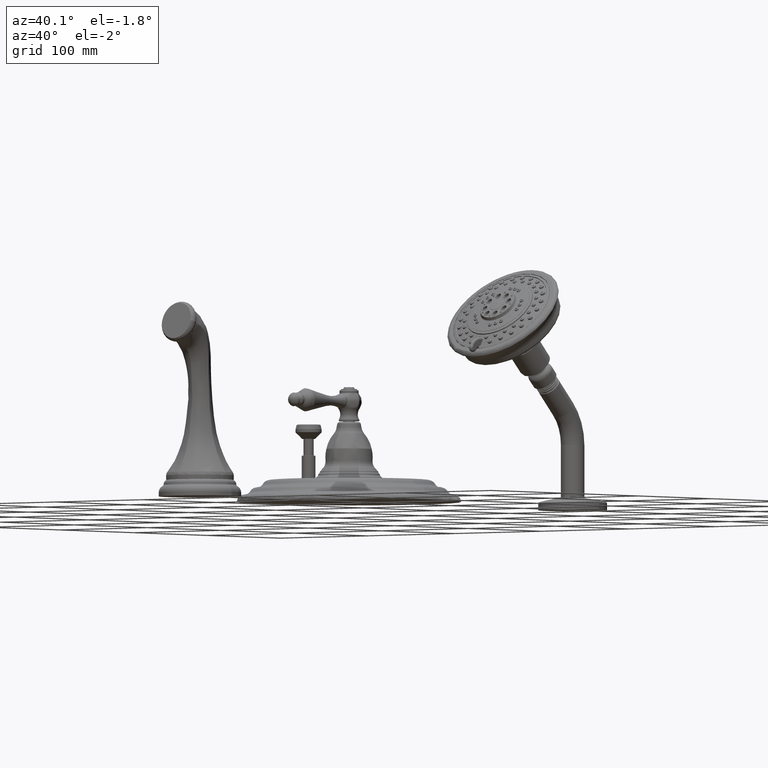
[diagram: clean part render]
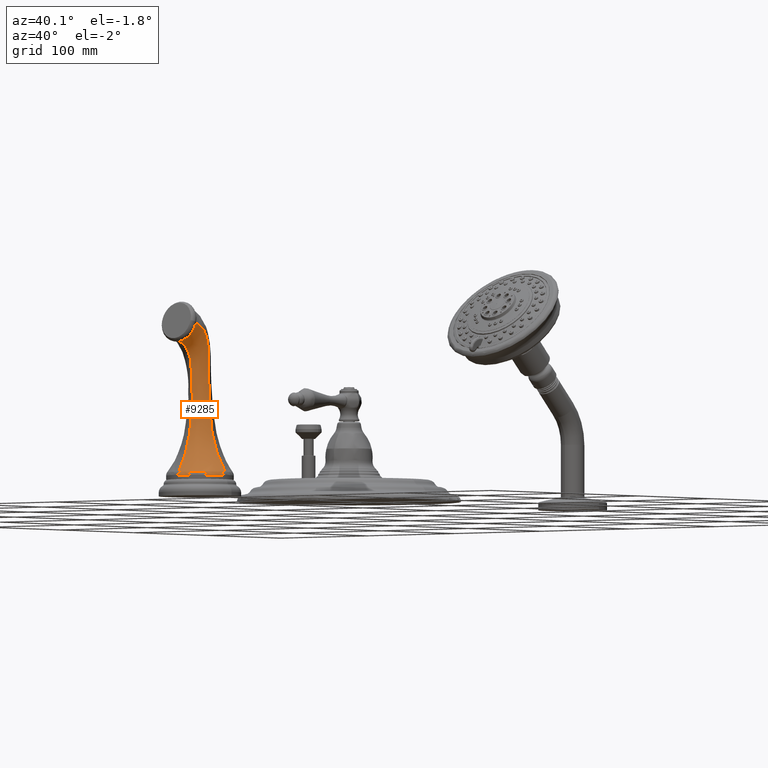
[diagram: same view with one face highlighted and labeled with its STEP entity id]
A machine part, auxiliary view. The second image highlights one B-rep face of the part: STEP entity #9285.
In plain terms, the highlighted face is a freeform B-spline surface patch.
Its self-contained STEP definition (entity closure, byte-faithful):
#8147=CARTESIAN_POINT('',(1.136722010433E0,-8.000000000223E0,
8.317705179022E-1));
#8214=CARTESIAN_POINT('',(6.362466257573E-1,-8.980058312882E0,
5.967048727690E0));
#8215=CARTESIAN_POINT('',(6.362466257573E-1,-8.863873466124E0,
5.935917091828E0));
#8216=CARTESIAN_POINT('',(6.247648631965E-1,-8.637531197968E0,
5.843980840580E0));
#8217=CARTESIAN_POINT('',(5.737178937073E-1,-8.362761937259E0,
5.606470583703E0));
#8218=CARTESIAN_POINT('',(5.185423975618E-1,-8.208621078912E0,
5.350164658123E0));
#8219=CARTESIAN_POINT('',(4.769737251890E-1,-8.123421321236E0,
5.128577825983E0));
#8220=CARTESIAN_POINT('',(4.486414065148E-1,-8.075588341736E0,
4.956565815991E0));
#8221=CARTESIAN_POINT('',(4.245716606277E-1,-8.041364545680E0,
4.780816354603E0));
#8222=CARTESIAN_POINT('',(4.058636084980E-1,-8.018427651200E0,
4.602664967914E0));
#8223=CARTESIAN_POINT('',(3.955654272218E-1,-8.007216955788E0,
4.452931082043E0));
#8224=CARTESIAN_POINT('',(3.909664260784E-1,-8.002160750626E0,
4.332764222992E0));
#8225=CARTESIAN_POINT('',(3.896737474152E-1,-8.000474272428E0,
4.257568772615E0));
#8226=CARTESIAN_POINT('',(3.897671690759E-1,-8.000035266578E0,
4.197438035532E0));
#8227=CARTESIAN_POINT('',(3.903580886575E-1,-7.999920625860E0,
4.137258456725E0));
#8228=CARTESIAN_POINT('',(3.922107460669E-1,-8.000071198206E0,
4.031832903038E0));
#8229=CARTESIAN_POINT('',(3.957119017021E-1,-7.999961236254E0,
3.881349281973E0));
#8230=CARTESIAN_POINT('',(4.020619104346E-1,-8.000015167548E0,
3.700769064731E0));
#8231=CARTESIAN_POINT('',(4.130293183916E-1,-7.999997234513E0,
3.460127596510E0));
#8232=CARTESIAN_POINT('',(4.315623149199E-1,-8.000001046237E0,
3.159560304170E0));
#8233=CARTESIAN_POINT('',(4.567854834176E-1,-7.999999859294E0,
2.859483773623E0));
#8234=CARTESIAN_POINT('',(4.803166265308E-1,-8.000000024862E0,
2.619742706292E0));
#8235=CARTESIAN_POINT('',(5.079707584581E-1,-7.999999985571E0,
2.380397752926E0));
#8236=CARTESIAN_POINT('',(5.658795337059E-1,-8.000000004885E0,
2.084491841974E0));
#8237=CARTESIAN_POINT('',(6.683324609568E-1,-7.999999998730E0,
1.737578291287E0));
#8238=CARTESIAN_POINT('',(8.412042739137E-1,-8.000000000628E0,
1.309476655935E0));
#8239=CARTESIAN_POINT('',(1.011015662867E0,-8.000000000293E0,1.012614746990E0));
#8240=CARTESIAN_POINT('',(1.136722010433E0,-8.000000000223E0,
8.317705179022E-1));
#8242=CARTESIAN_POINT('',(6.362466257573E-1,-8.980058312882E0,
5.967048727690E0));
#8250=CARTESIAN_POINT('',(0.E0,-9.144731057011E0,5.352481679982E0));
#8251=CARTESIAN_POINT('',(0.E0,-9.043586208966E0,5.324690235203E0));
#8252=CARTESIAN_POINT('',(0.E0,-8.850976377005E0,5.233619744586E0));
#8253=CARTESIAN_POINT('',(0.E0,-8.626454093760E0,5.006784434230E0));
#8254=CARTESIAN_POINT('',(0.E0,-8.513121933873E0,4.765306862436E0));
#8255=CARTESIAN_POINT('',(0.E0,-8.479875609588E0,4.557698268196E0));
#8256=CARTESIAN_POINT('',(0.E0,-8.458036812985E0,4.401964809082E0));
#8257=CARTESIAN_POINT('',(0.E0,-8.440041602590E0,4.245619726993E0));
#8258=CARTESIAN_POINT('',(0.E0,-8.425694437943E0,4.088931331925E0));
#8259=CARTESIAN_POINT('',(0.E0,-8.416832940647E0,3.958103276368E0));
#8260=CARTESIAN_POINT('',(0.E0,-8.411594430583E0,3.853339098659E0));
#8261=CARTESIAN_POINT('',(0.E0,-8.409093221782E0,3.787827204302E0));
#8262=CARTESIAN_POINT('',(0.E0,-8.407555991673E0,3.735402771567E0));
#8263=CARTESIAN_POINT('',(0.E0,-8.406328056387E0,3.682970181935E0));
#8264=CARTESIAN_POINT('',(0.E0,-8.404991082420E0,3.591196546948E0));
#8265=CARTESIAN_POINT('',(0.E0,-8.405400606583E0,3.460071214571E0));
#8266=CARTESIAN_POINT('',(0.E0,-8.409603310680E0,3.302776046586E0));
#8267=CARTESIAN_POINT('',(0.E0,-8.420151785001E0,3.093239570915E0));
#8268=CARTESIAN_POINT('',(0.E0,-8.442620024615E0,2.831899094735E0));
#8269=CARTESIAN_POINT('',(0.E0,-8.477315122526E0,2.571892529282E0));
#8270=CARTESIAN_POINT('',(0.E0,-8.512567519412E0,2.365078722163E0));
#8271=CARTESIAN_POINT('',(-2.009550478889E-14,-8.552052635952E0,
2.159016574082E0));
#8272=CARTESIAN_POINT('',(1.656483907986E-13,-8.615808743517E0,
1.904434597877E0));
#8273=CARTESIAN_POINT('',(-6.030769330562E-13,-8.718334761021E0,
1.606612759585E0));
#8274=CARTESIAN_POINT('',(3.012569343639E-12,-8.879166313263E0,
1.241176335927E0));
#8275=CARTESIAN_POINT('',(-1.199103718870E-11,-9.028763593881E0,
9.870716406473E-1));
#8276=CARTESIAN_POINT('',(-1.199102664320E-11,-9.136719884910E0,
8.317720657176E-1));
#8278=CARTESIAN_POINT('',(0.E0,-9.144731057011E0,5.352481679982E0));
#8279=CARTESIAN_POINT('',(8.328448855626E-2,-9.144731057011E0,
5.352481679982E0));
#8280=CARTESIAN_POINT('',(2.498146402672E-1,-9.136156751827E0,
5.384481422566E0));
#8281=CARTESIAN_POINT('',(4.616082816832E-1,-9.099531327559E0,
5.521169366783E0));
#8282=CARTESIAN_POINT('',(6.031180544800E-1,-9.044715099529E0,
5.725746314871E0));
#8283=CARTESIAN_POINT('',(6.362466257573E-1,-9.001613924682E0,
5.886602089264E0));
#8284=CARTESIAN_POINT('',(6.362466257573E-1,-8.980058312882E0,
5.967048727690E0));
#8328=CARTESIAN_POINT('',(-1.199102664320E-11,-9.136719884910E0,
8.317720657176E-1));
#8329=CARTESIAN_POINT('',(2.166981182738E-2,-9.136723054803E0,
8.317715190718E-1));
#8330=CARTESIAN_POINT('',(6.511637789147E-2,-9.135483588322E0,
8.317499178254E-1));
#8331=CARTESIAN_POINT('',(1.304241200771E-1,-9.129846725793E0,
8.316945551821E-1));
#8332=CARTESIAN_POINT('',(1.955087515392E-1,-9.120404170525E0,
8.316786399721E-1));
#8333=CARTESIAN_POINT('',(2.600629812898E-1,-9.107165106057E0,
8.317136732568E-1));
#8334=CARTESIAN_POINT('',(3.237905813005E-1,-9.090176300848E0,
8.317664657274E-1));
#8335=CARTESIAN_POINT('',(3.863853702824E-1,-9.069507974759E0,
8.318137389320E-1));
#8336=CARTESIAN_POINT('',(4.476273417261E-1,-9.045256034526E0,
8.318577154508E-1));
#8337=CARTESIAN_POINT('',(5.073564354489E-1,-9.017499153993E0,
8.318974621463E-1));
#8338=CARTESIAN_POINT('',(5.653922622811E-1,-8.986300608499E0,
8.319184773989E-1));
#8339=CARTESIAN_POINT('',(6.215467155956E-1,-8.951765149007E0,
8.319384937809E-1));
#8340=CARTESIAN_POINT('',(6.756281870551E-1,-8.914008665411E0,
8.319866859117E-1));
#8341=CARTESIAN_POINT('',(7.274519596232E-1,-8.873153600900E0,
8.320859061952E-1));
#8342=CARTESIAN_POINT('',(7.768545966205E-1,-8.829338957629E0,
8.321928417780E-1));
#8343=CARTESIAN_POINT('',(8.236669107778E-1,-8.782693561252E0,
8.322558684790E-1));
#8344=CARTESIAN_POINT('',(8.677341166177E-1,-8.733361175893E0,
8.322529824290E-1));
#8345=CARTESIAN_POINT('',(9.089176786923E-1,-8.681508196568E0,
8.322384027777E-1));
#8346=CARTESIAN_POINT('',(9.470680039785E-1,-8.627298272204E0,
8.322616548601E-1));
#8347=CARTESIAN_POINT('',(9.820475492046E-1,-8.570910512346E0,
8.323141792684E-1));
#8348=CARTESIAN_POINT('',(1.013734694604E0,-8.512530965953E0,
8.323538563588E-1));
#8349=CARTESIAN_POINT('',(1.042009554519E0,-8.452339448523E0,
8.323502826512E-1));
#8350=CARTESIAN_POINT('',(1.066786455159E0,-8.390530586137E0,
8.323137184474E-1));
#8351=CARTESIAN_POINT('',(1.087979908419E0,-8.327289599281E0,
8.322495225272E-1));
#8352=CARTESIAN_POINT('',(1.105474609244E0,-8.262864314758E0,
8.321588534050E-1));
#8353=CARTESIAN_POINT('',(1.119188803289E0,-8.197585698389E0,
8.320559526729E-1));
#8354=CARTESIAN_POINT('',(1.129072901512E0,-8.131775252349E0,
8.319704435820E-1));
#8355=CARTESIAN_POINT('',(1.135114381457E0,-8.065759124458E0,
8.319032709311E-1));
#8356=CARTESIAN_POINT('',(1.136604065476E0,-8.021879268790E0,
8.318241659817E-1));
#8357=CARTESIAN_POINT('',(1.136722010433E0,-8.000000000223E0,
8.317705179022E-1));
#8768=VERTEX_POINT('',#8242);
#8770=VERTEX_POINT('',#8278);
#8776=VERTEX_POINT('',#8147);
#8780=VERTEX_POINT('',#8276);
#9086=CARTESIAN_POINT('',(1.136721952478E0,-8.000000000010E0,
8.317704776176E-1));
#9087=CARTESIAN_POINT('',(1.011015604911E0,-8.000000000080E0,1.012614706705E0));
#9088=CARTESIAN_POINT('',(8.412042882611E-1,-8.000000000681E0,
1.309476665908E0));
#9089=CARTESIAN_POINT('',(6.683324581052E-1,-7.999999998719E0,
1.737578289305E0));
#9090=CARTESIAN_POINT('',(5.658795344868E-1,-8.000000004888E0,
2.084491842517E0));
#9091=CARTESIAN_POINT('',(5.079707583614E-1,-7.999999985571E0,
2.380397752858E0));
#9092=CARTESIAN_POINT('',(4.803166265486E-1,-8.000000024862E0,
2.619742706304E0));
#9093=CARTESIAN_POINT('',(4.567854834073E-1,-7.999999859294E0,
2.859483773616E0));
#9094=CARTESIAN_POINT('',(4.315623149234E-1,-8.000001046237E0,
3.159560304172E0));
#9095=CARTESIAN_POINT('',(4.130293183912E-1,-7.999997234513E0,
3.460127596510E0));
#9096=CARTESIAN_POINT('',(4.020619104347E-1,-8.000015167548E0,
3.700769064731E0));
#9097=CARTESIAN_POINT('',(3.957119017021E-1,-7.999961236254E0,
3.881349281973E0));
#9098=CARTESIAN_POINT('',(3.922107460669E-1,-8.000071198206E0,
4.031832903038E0));
#9099=CARTESIAN_POINT('',(3.903580886575E-1,-7.999920625860E0,
4.137258456725E0));
#9100=CARTESIAN_POINT('',(3.897671690759E-1,-8.000035266578E0,
4.197438035532E0));
#9101=CARTESIAN_POINT('',(3.896737474152E-1,-8.000474272428E0,
4.257568772615E0));
#9102=CARTESIAN_POINT('',(3.909664260784E-1,-8.002160750626E0,
4.332764222992E0));
#9103=CARTESIAN_POINT('',(3.955654272218E-1,-8.007216955788E0,
4.452931082043E0));
#9104=CARTESIAN_POINT('',(4.058636084980E-1,-8.018427651200E0,
4.602664967914E0));
#9105=CARTESIAN_POINT('',(4.245716606277E-1,-8.041364545680E0,
4.780816354603E0));
#9106=CARTESIAN_POINT('',(4.486414065148E-1,-8.075588341736E0,
4.956565815991E0));
#9107=CARTESIAN_POINT('',(4.769737251890E-1,-8.123421321236E0,
5.128577825983E0));
#9108=CARTESIAN_POINT('',(5.185423975618E-1,-8.208621078912E0,
5.350164658123E0));
#9109=CARTESIAN_POINT('',(5.737178937073E-1,-8.362761937259E0,
5.606470583703E0));
#9110=CARTESIAN_POINT('',(6.247648631965E-1,-8.637531197968E0,
5.843980840580E0));
#9111=CARTESIAN_POINT('',(6.362466257573E-1,-8.863873466124E0,
5.935917091828E0));
#9112=CARTESIAN_POINT('',(6.362466257573E-1,-8.980058312882E0,
5.967048727690E0));
#9113=CARTESIAN_POINT('',(1.136721952478E0,-8.148993869940E0,
8.309815668572E-1));
#9114=CARTESIAN_POINT('',(1.011015604911E0,-8.133229731452E0,1.008990799214E0));
#9115=CARTESIAN_POINT('',(8.412042882611E-1,-8.111893924821E0,
1.300973298813E0));
#9116=CARTESIAN_POINT('',(6.683324581052E-1,-8.090122039555E0,
1.721857792945E0));
#9117=CARTESIAN_POINT('',(5.658795344868E-1,-8.077060638746E0,
2.062918846617E0));
#9118=CARTESIAN_POINT('',(5.079707583614E-1,-8.069894245483E0,
2.353898681576E0));
#9119=CARTESIAN_POINT('',(4.803166265486E-1,-8.065072136035E0,
2.589443094990E0));
#9120=CARTESIAN_POINT('',(4.567854834073E-1,-8.060728653583E0,
2.825401805538E0));
#9121=CARTESIAN_POINT('',(4.315623149234E-1,-8.056250667675E0,
3.120805041040E0));
#9122=CARTESIAN_POINT('',(4.130293183912E-1,-8.053028697691E0,
3.416740025297E0));
#9123=CARTESIAN_POINT('',(4.020619104347E-1,-8.051232899739E0,
3.653686814129E0));
#9124=CARTESIAN_POINT('',(3.957119017021E-1,-8.050199742311E0,
3.831497711455E0));
#9125=CARTESIAN_POINT('',(3.922107460669E-1,-8.049809650402E0,
3.979671921760E0));
#9126=CARTESIAN_POINT('',(3.903580886575E-1,-8.049477467663E0,
4.083478385272E0));
#9127=CARTESIAN_POINT('',(3.897671690759E-1,-8.049536369153E0,
4.142731835881E0));
#9128=CARTESIAN_POINT('',(3.896737474152E-1,-8.049944530492E0,
4.201935742977E0));
#9129=CARTESIAN_POINT('',(3.909664260784E-1,-8.051681936433E0,
4.275971277416E0));
#9130=CARTESIAN_POINT('',(3.955654272218E-1,-8.056832420341E0,
4.394277621026E0));
#9131=CARTESIAN_POINT('',(4.058636084980E-1,-8.067462982570E0,
4.541710219166E0));
#9132=CARTESIAN_POINT('',(4.245716606277E-1,-8.088769997686E0,
4.717250980582E0));
#9133=CARTESIAN_POINT('',(4.486414065148E-1,-8.120401499073E0,
4.890653937144E0));
#9134=CARTESIAN_POINT('',(4.769737251890E-1,-8.164737405802E0,
5.060680057446E0));
#9135=CARTESIAN_POINT('',(5.185423975618E-1,-8.244060832377E0,
5.280294106613E0));
#9136=CARTESIAN_POINT('',(5.737178937073E-1,-8.392717402727E0,
5.534540181382E0));
#9137=CARTESIAN_POINT('',(6.247648631965E-1,-8.662781263953E0,
5.768873071279E0));
#9138=CARTESIAN_POINT('',(6.362466257573E-1,-8.886699631550E0,
5.857503343528E0));
#9139=CARTESIAN_POINT('',(6.362466257573E-1,-9.001613924682E0,
5.886602089264E0));
#9140=CARTESIAN_POINT('',(1.077855784163E0,-8.447432315933E0,
8.293455709869E-1));
#9141=CARTESIAN_POINT('',(9.598216648690E-1,-8.401953123333E0,
1.001477339652E0));
#9142=CARTESIAN_POINT('',(8.003267312536E-1,-8.340029933781E0,
1.283368986050E0));
#9143=CARTESIAN_POINT('',(6.378298275476E-1,-8.275778447415E0,
1.689332351971E0));
#9144=CARTESIAN_POINT('',(5.414276239795E-1,-8.236472114407E0,
2.018269418767E0));
#9145=CARTESIAN_POINT('',(4.868303483111E-1,-8.213863357472E0,
2.299046027989E0));
#9146=CARTESIAN_POINT('',(4.606502128562E-1,-8.199038274290E0,
2.526539197691E0));
#9147=CARTESIAN_POINT('',(4.383608378091E-1,-8.185699757046E0,
2.754506217502E0));
#9148=CARTESIAN_POINT('',(4.144160253955E-1,-8.172099134652E0,
3.040111595670E0));
#9149=CARTESIAN_POINT('',(3.967440265080E-1,-8.162544312660E0,
3.326395578245E0));
#9150=CARTESIAN_POINT('',(3.862208690073E-1,-8.157369448987E0,
3.555665245388E0));
#9151=CARTESIAN_POINT('',(3.800886413007E-1,-8.154652628758E0,
3.727731101549E0));
#9152=CARTESIAN_POINT('',(3.766499812151E-1,-8.153548582810E0,
3.871104264042E0));
#9153=CARTESIAN_POINT('',(3.748130070162E-1,-8.153107266135E0,
3.971568473813E0));
#9154=CARTESIAN_POINT('',(3.741918553890E-1,-8.153194271210E0,
4.028866786424E0));
#9155=CARTESIAN_POINT('',(3.740367775574E-1,-8.153651788225E0,
4.086287779532E0));
#9156=CARTESIAN_POINT('',(3.751740002867E-1,-8.155436919763E0,
4.157994162291E0));
#9157=CARTESIAN_POINT('',(3.793816546883E-1,-8.160480460699E0,
4.272527086937E0));
#9158=CARTESIAN_POINT('',(3.889301670436E-1,-8.169857579819E0,
4.415173893527E0));
#9159=CARTESIAN_POINT('',(4.063542558093E-1,-8.187897731628E0,
4.585154168568E0));
#9160=CARTESIAN_POINT('',(4.287957410292E-1,-8.214290259679E0,
4.753466154515E0));
#9161=CARTESIAN_POINT('',(4.552053823197E-1,-8.251276860773E0,
4.919162399177E0));
#9162=CARTESIAN_POINT('',(4.939245410040E-1,-8.317544650228E0,
5.134705842340E0));
#9163=CARTESIAN_POINT('',(5.452345986536E-1,-8.455208867537E0,
5.384779927397E0));
#9164=CARTESIAN_POINT('',(5.926367948612E-1,-8.714919114707E0,
5.614238788708E0));
#9165=CARTESIAN_POINT('',(6.032345917504E-1,-8.932829321060E0,
5.699107190077E0));
#9166=CARTESIAN_POINT('',(6.031180544800E-1,-9.044715099529E0,
5.725746314871E0));
#9167=CARTESIAN_POINT('',(8.254114129021E-1,-8.827638747050E0,
8.271607113126E-1));
#9168=CARTESIAN_POINT('',(7.366598824193E-1,-8.746623361541E0,
9.914431166797E-1));
#9169=CARTESIAN_POINT('',(6.166603011548E-1,-8.635572862121E0,
1.259856911486E0));
#9170=CARTESIAN_POINT('',(4.942059700993E-1,-8.518210655879E0,
1.645849352604E0));
#9171=CARTESIAN_POINT('',(4.214085716557E-1,-8.444916237758E0,
1.958504898528E0));
#9172=CARTESIAN_POINT('',(3.800125559623E-1,-8.400720621753E0,
2.225578567302E0));
#9173=CARTESIAN_POINT('',(3.599986361186E-1,-8.372604343555E0,
2.441970584041E0));
#9174=CARTESIAN_POINT('',(3.429664329009E-1,-8.347382396948E0,
2.658956046348E0));
#9175=CARTESIAN_POINT('',(3.245840298759E-1,-8.322084755476E0,
2.931224574307E0));
#9176=CARTESIAN_POINT('',(3.109081802992E-1,-8.304946502774E0,
3.204473586285E0));
#9177=CARTESIAN_POINT('',(3.026699297679E-1,-8.296198273171E0,
3.423410160772E0));
#9178=CARTESIAN_POINT('',(2.978158843998E-1,-8.292069049379E0,
3.587754658823E0));
#9179=CARTESIAN_POINT('',(2.950067907341E-1,-8.290784476899E0,
3.724671571670E0));
#9180=CARTESIAN_POINT('',(2.934912930556E-1,-8.290827144963E0,
3.820655075827E0));
#9181=CARTESIAN_POINT('',(2.929218052737E-1,-8.291292842145E0,
3.875298631928E0));
#9182=CARTESIAN_POINT('',(2.927010465753E-1,-8.292110106988E0,
3.930458028949E0));
#9183=CARTESIAN_POINT('',(2.934476638750E-1,-8.294026282036E0,
3.999110138512E0));
#9184=CARTESIAN_POINT('',(2.964722062243E-1,-8.298728355055E0,
4.108671717543E0));
#9185=CARTESIAN_POINT('',(3.035292271055E-1,-8.306749769959E0,
4.244917696095E0));
#9186=CARTESIAN_POINT('',(3.165033801260E-1,-8.321106942079E0,
4.407346105768E0));
#9187=CARTESIAN_POINT('',(3.332176018791E-1,-8.341189440316E0,
4.568662315542E0));
#9188=CARTESIAN_POINT('',(3.528379258915E-1,-8.368577281697E0,
4.728421679403E0));
#9189=CARTESIAN_POINT('',(3.815057646901E-1,-8.416283711182E0,
4.938832345355E0));
#9190=CARTESIAN_POINT('',(4.192673191453E-1,-8.540109435649E0,
5.183733892268E0));
#9191=CARTESIAN_POINT('',(4.540688455018E-1,-8.784553703882E0,
5.409802987543E0));
#9192=CARTESIAN_POINT('',(4.618584533380E-1,-8.992404959299E0,
5.494962200046E0));
#9193=CARTESIAN_POINT('',(4.616082816832E-1,-9.099531327559E0,
5.521169366783E0));
#9194=CARTESIAN_POINT('',(4.468830528783E-1,-9.081820592223E0,
8.256306515691E-1));
#9195=CARTESIAN_POINT('',(3.994975577888E-1,-8.977564030056E0,
9.844136027783E-1));
#9196=CARTESIAN_POINT('',(3.353921737195E-1,-8.834118068290E0,
1.243343290118E0));
#9197=CARTESIAN_POINT('',(2.698772400200E-1,-8.680962126707E0,
1.615215287977E0));
#9198=CARTESIAN_POINT('',(2.308543359092E-1,-8.584249917721E0,
1.916316950571E0));
#9199=CARTESIAN_POINT('',(2.085800967832E-1,-8.524487423805E0,
2.173662829510E0));
#9200=CARTESIAN_POINT('',(1.977304451319E-1,-8.487212719298E0,
2.382030112956E0));
#9201=CARTESIAN_POINT('',(1.885287483448E-1,-8.453881000815E0,
2.591101410106E0));
#9202=CARTESIAN_POINT('',(1.785504364481E-1,-8.420890844878E0,
2.853824890493E0));
#9203=CARTESIAN_POINT('',(1.710840483191E-1,-8.399228223478E0,
3.117799281693E0));
#9204=CARTESIAN_POINT('',(1.665446154689E-1,-8.388782113249E0,
3.329405735519E0));
#9205=CARTESIAN_POINT('',(1.638506305900E-1,-8.384364955353E0,
3.488271364362E0));
#9206=CARTESIAN_POINT('',(1.622487625787E-1,-8.383591084820E0,
3.620628415273E0));
#9207=CARTESIAN_POINT('',(1.613890449831E-1,-8.384489064690E0,
3.713410129274E0));
#9208=CARTESIAN_POINT('',(1.610333408873E-1,-8.385495333495E0,
3.766207100519E0));
#9209=CARTESIAN_POINT('',(1.608628764907E-1,-8.386818192907E0,
3.819661839155E0));
#9210=CARTESIAN_POINT('',(1.612171629508E-1,-8.389031151596E0,
3.886096075931E0));
#9211=CARTESIAN_POINT('',(1.627952493479E-1,-8.393731255555E0,
3.992108291015E0));
#9212=CARTESIAN_POINT('',(1.665693090243E-1,-8.401494297835E0,
4.123917873064E0));
#9213=CARTESIAN_POINT('',(1.735296346238E-1,-8.414347091116E0,
4.281220730876E0));
#9214=CARTESIAN_POINT('',(1.824638296095E-1,-8.431102228487E0,
4.437847284490E0));
#9215=CARTESIAN_POINT('',(1.928844657207E-1,-8.452529844494E0,
4.593690799283E0));
#9216=CARTESIAN_POINT('',(2.080050264996E-1,-8.487258238944E0,
4.801064575301E0));
#9217=CARTESIAN_POINT('',(2.277007017314E-1,-8.602154636097E0,
5.042839470577E0));
#9218=CARTESIAN_POINT('',(2.458332574852E-1,-8.834135568105E0,
5.268580992647E0));
#9219=CARTESIAN_POINT('',(2.500116916990E-1,-9.032945743588E0,
5.357122493341E0));
#9220=CARTESIAN_POINT('',(2.498146402672E-1,-9.136156751827E0,
5.384481422566E0));
#9221=CARTESIAN_POINT('',(1.489902584926E-1,-9.141294303278E0,
8.252300831320E-1));
#9222=CARTESIAN_POINT('',(1.332137952699E-1,-9.031480292308E0,
9.825716974092E-1));
#9223=CARTESIAN_POINT('',(1.118665627834E-1,-8.880241729343E0,
1.238990120444E0));
#9224=CARTESIAN_POINT('',(9.003845223432E-2,-8.718334756277E0,
1.607089845997E0));
#9225=CARTESIAN_POINT('',(7.702815188018E-2,-8.615808745193E0,
1.905090173301E0));
#9226=CARTESIAN_POINT('',(6.959186747095E-2,-8.552052634598E0,
2.159822608151E0));
#9227=CARTESIAN_POINT('',(6.596065420035E-2,-8.512567521506E0,
2.366003071560E0));
#9228=CARTESIAN_POINT('',(6.289573156988E-2,-8.477315110941E0,
2.572929047005E0));
#9229=CARTESIAN_POINT('',(5.956456029770E-2,-8.442620112417E0,
2.833077755752E0));
#9230=CARTESIAN_POINT('',(5.707121516240E-2,-8.420151547706E0,
3.094561325323E0));
#9231=CARTESIAN_POINT('',(5.555219105135E-2,-8.409604370100E0,
3.304208185785E0));
#9232=CARTESIAN_POINT('',(5.465099614527E-2,-8.405397759123E0,
3.461597439524E0));
#9233=CARTESIAN_POINT('',(5.410965268975E-2,-8.404996783847E0,
3.592765958252E0));
#9234=CARTESIAN_POINT('',(5.382412280612E-2,-8.406321358551E0,
3.684637067576E0));
#9235=CARTESIAN_POINT('',(5.369951056126E-2,-8.407561246909E0,
3.737023140216E0));
#9236=CARTESIAN_POINT('',(5.363642454593E-2,-8.409106912409E0,
3.789736736351E0));
#9237=CARTESIAN_POINT('',(5.375315952102E-2,-8.411551273125E0,
3.855424492370E0));
#9238=CARTESIAN_POINT('',(5.428737980648E-2,-8.416586945697E0,
3.960363043992E0));
#9239=CARTESIAN_POINT('',(5.557154163787E-2,-8.424995600388E0,
4.091135437770E0));
#9240=CARTESIAN_POINT('',(5.793137316710E-2,-8.438584002864E0,
4.247514124477E0));
#9241=CARTESIAN_POINT('',(6.094303352956E-2,-8.455710775597E0,
4.403445635753E0));
#9242=CARTESIAN_POINT('',(6.443150365560E-2,-8.476711425450E0,
4.558785026624E0));
#9243=CARTESIAN_POINT('',(6.945897133850E-2,-8.509077860388E0,
4.765991555527E0));
#9244=CARTESIAN_POINT('',(7.593987709121E-2,-8.622209020231E0,
5.007325714526E0));
#9245=CARTESIAN_POINT('',(8.191356335017E-2,-8.848732165210E0,
5.233884970176E0));
#9246=CARTESIAN_POINT('',(8.335039961378E-2,-9.043096949191E0,
5.324559138441E0));
#9247=CARTESIAN_POINT('',(8.328448855626E-2,-9.144731057011E0,
5.352481679982E0));
#9248=CARTESIAN_POINT('',(0.E0,-9.141294303277E0,8.252063120791E-1));
#9249=CARTESIAN_POINT('',(0.E0,-9.031480292302E0,9.824624493767E-1));
#9250=CARTESIAN_POINT('',(0.E0,-8.880241729287E0,1.238732878509E0));
#9251=CARTESIAN_POINT('',(0.E0,-8.718334756383E0,1.606612756361E0));
#9252=CARTESIAN_POINT('',(0.E0,-8.615808744787E0,1.904434598760E0));
#9253=CARTESIAN_POINT('',(0.E0,-8.552052635795E0,2.159016573973E0));
#9254=CARTESIAN_POINT('',(0.E0,-8.512567519441E0,2.365078722183E0));
#9255=CARTESIAN_POINT('',(0.E0,-8.477315122509E0,2.571892529271E0));
#9256=CARTESIAN_POINT('',(0.E0,-8.442620024621E0,2.831899094739E0));
#9257=CARTESIAN_POINT('',(0.E0,-8.420151785E0,3.093239570914E0));
#9258=CARTESIAN_POINT('',(0.E0,-8.409603310680E0,3.302776046587E0));
#9259=CARTESIAN_POINT('',(0.E0,-8.405400606583E0,3.460071214571E0));
#9260=CARTESIAN_POINT('',(0.E0,-8.404991082420E0,3.591196546948E0));
#9261=CARTESIAN_POINT('',(0.E0,-8.406328056387E0,3.682970181935E0));
#9262=CARTESIAN_POINT('',(0.E0,-8.407555991673E0,3.735402771567E0));
#9263=CARTESIAN_POINT('',(0.E0,-8.409093221782E0,3.787827204302E0));
#9264=CARTESIAN_POINT('',(0.E0,-8.411594430583E0,3.853339098659E0));
#9265=CARTESIAN_POINT('',(0.E0,-8.416832940647E0,3.958103276368E0));
#9266=CARTESIAN_POINT('',(0.E0,-8.425694437943E0,4.088931331925E0));
#9267=CARTESIAN_POINT('',(0.E0,-8.440041602590E0,4.245619726993E0));
#9268=CARTESIAN_POINT('',(0.E0,-8.458036812985E0,4.401964809082E0));
#9269=CARTESIAN_POINT('',(0.E0,-8.479875609588E0,4.557698268196E0));
#9270=CARTESIAN_POINT('',(0.E0,-8.513121933873E0,4.765306862436E0));
#9271=CARTESIAN_POINT('',(0.E0,-8.626454093760E0,5.006784434230E0));
#9272=CARTESIAN_POINT('',(0.E0,-8.850976377005E0,5.233619744586E0));
#9273=CARTESIAN_POINT('',(0.E0,-9.043586208966E0,5.324690235203E0));
#9274=CARTESIAN_POINT('',(0.E0,-9.144731057011E0,5.352481679982E0));
#9275=B_SPLINE_SURFACE_WITH_KNOTS('',3,3,((#9086,#9087,#9088,#9089,#9090,#9091,
#9092,#9093,#9094,#9095,#9096,#9097,#9098,#9099,#9100,#9101,#9102,#9103,#9104,
#9105,#9106,#9107,#9108,#9109,#9110,#9111,#9112),(#9113,#9114,#9115,#9116,#9117,
#9118,#9119,#9120,#9121,#9122,#9123,#9124,#9125,#9126,#9127,#9128,#9129,#9130,
#9131,#9132,#9133,#9134,#9135,#9136,#9137,#9138,#9139),(#9140,#9141,#9142,#9143,
#9144,#9145,#9146,#9147,#9148,#9149,#9150,#9151,#9152,#9153,#9154,#9155,#9156,
#9157,#9158,#9159,#9160,#9161,#9162,#9163,#9164,#9165,#9166),(#9167,#9168,#9169,
#9170,#9171,#9172,#9173,#9174,#9175,#9176,#9177,#9178,#9179,#9180,#9181,#9182,
#9183,#9184,#9185,#9186,#9187,#9188,#9189,#9190,#9191,#9192,#9193),(#9194,#9195,
#9196,#9197,#9198,#9199,#9200,#9201,#9202,#9203,#9204,#9205,#9206,#9207,#9208,
#9209,#9210,#9211,#9212,#9213,#9214,#9215,#9216,#9217,#9218,#9219,#9220),(#9221,
#9222,#9223,#9224,#9225,#9226,#9227,#9228,#9229,#9230,#9231,#9232,#9233,#9234,
#9235,#9236,#9237,#9238,#9239,#9240,#9241,#9242,#9243,#9244,#9245,#9246,#9247),(
#9248,#9249,#9250,#9251,#9252,#9253,#9254,#9255,#9256,#9257,#9258,#9259,#9260,
#9261,#9262,#9263,#9264,#9265,#9266,#9267,#9268,#9269,#9270,#9271,#9272,#9273,
#9274)),.UNSPECIFIED.,.F.,.F.,.F.,(4,1,1,1,4),(4,1,1,1,1,1,1,1,1,1,1,1,1,1,1,1,
1,1,1,1,1,1,1,1,4),(2.5E-1,3.125E-1,3.75E-1,4.375E-1,5.E-1),(1.071549929260E-2,
1.25E-1,1.875E-1,2.5E-1,3.125E-1,3.4375E-1,3.75E-1,4.375E-1,5.E-1,5.3125E-1,
5.625E-1,5.9375E-1,6.09375E-1,6.171875E-1,6.25E-1,6.40625E-1,6.5625E-1,6.875E-1,
7.1875E-1,7.5E-1,7.8125E-1,8.125E-1,8.75E-1,9.375E-1,1.E0),.UNSPECIFIED.);
#9276=ORIENTED_EDGE('',*,*,#9077,.T.);
#9278=ORIENTED_EDGE('',*,*,#9277,.F.);
#9280=ORIENTED_EDGE('',*,*,#9279,.F.);
#9282=ORIENTED_EDGE('',*,*,#9281,.T.);
#9283=EDGE_LOOP('',(#9276,#9278,#9280,#9282));
#9284=FACE_OUTER_BOUND('',#9283,.F.);
#9285=ADVANCED_FACE('',(#9284),#9275,.F.);
#8241=B_SPLINE_CURVE_WITH_KNOTS('',3,(#8214,#8215,#8216,#8217,#8218,#8219,#8220,
#8221,#8222,#8223,#8224,#8225,#8226,#8227,#8228,#8229,#8230,#8231,#8232,#8233,
#8234,#8235,#8236,#8237,#8238,#8239,#8240),.UNSPECIFIED.,.F.,.F.,(4,1,1,1,1,1,1,
1,1,1,1,1,1,1,1,1,1,1,1,1,1,1,1,1,4),(0.E0,6.317697280743E-2,1.263539456149E-1,
1.895309184223E-1,2.211194048260E-1,2.527078912297E-1,2.842963776334E-1,
3.158848640371E-1,3.474733504408E-1,3.632675936427E-1,3.790618368446E-1,
3.869589584455E-1,3.948560800464E-1,4.106503232483E-1,4.422388096520E-1,
4.738272960557E-1,5.054157824594E-1,5.685927552668E-1,6.317697280743E-1,
6.633582144780E-1,6.949467008817E-1,7.581236736891E-1,8.213006464965E-1,
8.844776193040E-1,1.E0),.UNSPECIFIED.);
#8277=B_SPLINE_CURVE_WITH_KNOTS('',3,(#8250,#8251,#8252,#8253,#8254,#8255,#8256,
#8257,#8258,#8259,#8260,#8261,#8262,#8263,#8264,#8265,#8266,#8267,#8268,#8269,
#8270,#8271,#8272,#8273,#8274,#8275,#8276),.UNSPECIFIED.,.F.,.F.,(4,1,1,1,1,1,1,
1,1,1,1,1,1,1,1,1,1,1,1,1,1,1,1,1,4),(0.E0,6.327863326395E-2,1.265572665279E-1,
1.898358997919E-1,2.214752164238E-1,2.531145330558E-1,2.847538496878E-1,
3.163931663198E-1,3.480324829517E-1,3.638521412677E-1,3.796717995837E-1,
3.875816287417E-1,3.954914578997E-1,4.113111162157E-1,4.429504328477E-1,
4.745897494796E-1,5.062290661116E-1,5.695076993756E-1,6.327863326395E-1,
6.644256492715E-1,6.960649659035E-1,7.593435991674E-1,8.226222324314E-1,
8.859008656953E-1,1.E0),.UNSPECIFIED.);
#8285=B_SPLINE_CURVE_WITH_KNOTS('',3,(#8278,#8279,#8280,#8281,#8282,#8283,
#8284),.UNSPECIFIED.,.F.,.F.,(4,1,1,1,4),(0.E0,2.5E-1,5.E-1,7.5E-1,1.E0),
.UNSPECIFIED.);
#8358=B_SPLINE_CURVE_WITH_KNOTS('',3,(#8328,#8329,#8330,#8331,#8332,#8333,#8334,
#8335,#8336,#8337,#8338,#8339,#8340,#8341,#8342,#8343,#8344,#8345,#8346,#8347,
#8348,#8349,#8350,#8351,#8352,#8353,#8354,#8355,#8356,#8357),.UNSPECIFIED.,.F.,
.F.,(4,1,1,1,1,1,1,1,1,1,1,1,1,1,1,1,1,1,1,1,1,1,1,1,1,1,1,4),(0.E0,
3.703703703704E-2,7.407407407407E-2,1.111111111111E-1,1.481481481481E-1,
1.851851851852E-1,2.222222222222E-1,2.592592592593E-1,2.962962962963E-1,
3.333333333333E-1,3.703703703704E-1,4.074074074074E-1,4.444444444444E-1,
4.814814814815E-1,5.185185185185E-1,5.555555555556E-1,5.925925925926E-1,
6.296296296296E-1,6.666666666667E-1,7.037037037037E-1,7.407407407407E-1,
7.777777777778E-1,8.148148148148E-1,8.518518518519E-1,8.888888888889E-1,
9.259259259259E-1,9.629629629630E-1,1.E0),.UNSPECIFIED.);
#9077=EDGE_CURVE('',#8768,#8776,#8241,.T.);
#9277=EDGE_CURVE('',#8780,#8776,#8358,.T.);
#9279=EDGE_CURVE('',#8770,#8780,#8277,.T.);
#9281=EDGE_CURVE('',#8770,#8768,#8285,.T.);